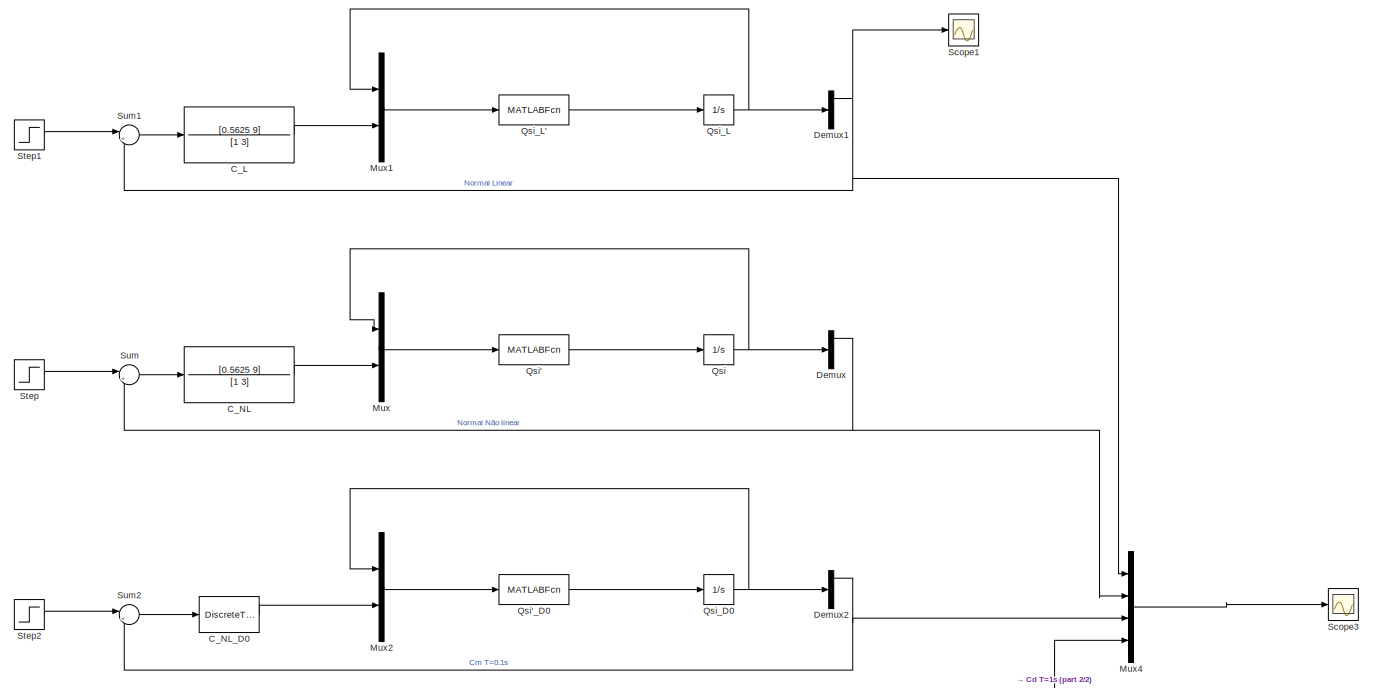
[diagram: root canvas - part 1/2, full width, top band]
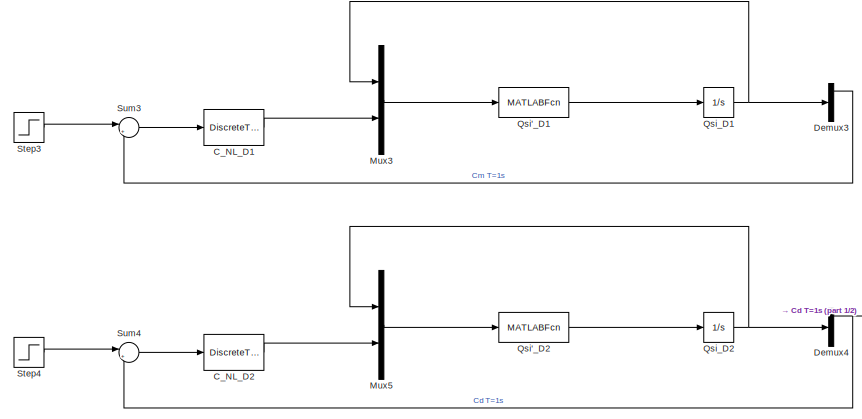
[diagram: root canvas - part 2/2, bottom left region]
MODEL slx_0befbc9e92ad
KIND model
CONFIG AbsTol = auto
CONFIG EnableMultiTasking = off
CONFIG FixedStep = auto
CONFIG MaxStep = auto
CONFIG MinStep = auto
CONFIG RelTol = 1e-3
CONFIG SampleTimeConstraint = Unconstrained
CONFIG SolverName = VariableStepAuto
CONFIG StartTime = 0.0
CONFIG StopTime = 10.0
BLOCK [TransferFcn] C_L
  Denominator = [1 3]
  Numerator = [0.5625 9]
BLOCK [TransferFcn] C_NL
  Denominator = [1 3]
  Numerator = [0.5625 9]
BLOCK [DiscreteTransferFcn] C_NL_D0
  Denominator = DCM0
  InputPortMap = u0
  Numerator = NCM0
  Ports = [1, 1]
  SampleTime = 0.1
BLOCK [DiscreteTransferFcn] C_NL_D1
  Denominator = DCM1
  InputPortMap = u0
  Numerator = NCM1
  Ports = [1, 1]
  SampleTime = 1
BLOCK [DiscreteTransferFcn] C_NL_D2
  Denominator = DCD
  InputPortMap = u0
  Numerator = NCD
  Ports = [1, 1]
  SampleTime = 1
BLOCK [Demux] Demux
  Ports = [1, 4]
BLOCK [Demux] Demux1
  Ports = [1, 4]
BLOCK [Demux] Demux2
  Ports = [1, 4]
BLOCK [Demux] Demux3
  Ports = [1, 4]
BLOCK [Demux] Demux4
  Ports = [1, 4]
BLOCK [Mux] Mux
  DisplayOption = bar
  Inputs = 2
  Ports = [2, 1]
BLOCK [Mux] Mux1
  DisplayOption = bar
  Inputs = 2
  Ports = [2, 1]
BLOCK [Mux] Mux2
  DisplayOption = bar
  Inputs = 2
  Ports = [2, 1]
BLOCK [Mux] Mux3
  DisplayOption = bar
  Inputs = 2
  Ports = [2, 1]
BLOCK [Mux] Mux4
  DisplayOption = bar
  Ports = [4, 1]
BLOCK [Mux] Mux5
  DisplayOption = bar
  Inputs = 2
  Ports = [2, 1]
BLOCK [Integrator] Qsi
  Ports = [1, 1]
BLOCK [MATLABFcn] Qsi'
  MATLABFcn = planta_funcao
  OutputDimensions = 4
  Ports = [1, 1]
BLOCK [MATLABFcn] Qsi'_D0
  MATLABFcn = planta_funcao
  OutputDimensions = 4
  Ports = [1, 1]
BLOCK [MATLABFcn] Qsi'_D1
  MATLABFcn = planta_funcao
  OutputDimensions = 4
  Ports = [1, 1]
BLOCK [MATLABFcn] Qsi'_D2
  MATLABFcn = planta_funcao
  OutputDimensions = 4
  Ports = [1, 1]
BLOCK [Integrator] Qsi_D0
  Ports = [1, 1]
BLOCK [Integrator] Qsi_D1
  Ports = [1, 1]
BLOCK [Integrator] Qsi_D2
  Ports = [1, 1]
BLOCK [Integrator] Qsi_L
  Ports = [1, 1]
BLOCK [MATLABFcn] Qsi_L'
  MATLABFcn = planta_funcao_linear
  OutputDimensions = 4
  Ports = [1, 1]
BLOCK [Scope] Scope1
  Floating = off
  NumInputPorts = 1
  Ports = [1]
  ScopeSpecificationString = Simulink.scopes.TimeScopeBlockCfg('CurrentConfiguration', extmgr.ConfigurationSet(extmgr.Configuration('Core','General UI',true),extmgr.Configuration('Core','Source UI',true),extmgr.Configuration('Sources','WiredSimulink',true,'DataLoggingVariableName','ScopeData1'),extmgr.Configuration('Visuals','Time Domain',true,'SerializedDisplays',{struct('MinYLimReal','-1.25065','MaxYLimReal','11.25587','YLa...<+1399ch>
BLOCK [Scope] Scope3
  Floating = off
  NumInputPorts = 1
  Ports = [1]
  ScopeSpecificationString = Simulink.scopes.TimeScopeBlockCfg('CurrentConfiguration', extmgr.ConfigurationSet(extmgr.Configuration('Core','General UI',true),extmgr.Configuration('Core','Source UI',true),extmgr.Configuration('Sources','WiredSimulink',true,'DataLoggingVariableName','ScopeData2'),extmgr.Configuration('Visuals','Time Domain',true,'SerializedDisplays',{struct('MinYLimReal','-0.05055','MaxYLimReal','10.50501','YLa...<+1958ch>
BLOCK [Step] Step
  After = 10
  SampleTime = 0
  Time = 0
BLOCK [Step] Step1
  After = 10
  SampleTime = 0
  Time = 0
BLOCK [Step] Step2
  After = 10
  SampleTime = 0
  Time = 0
BLOCK [Step] Step3
  After = 10
  SampleTime = 0
  Time = 0
BLOCK [Step] Step4
  After = 10
  SampleTime = 0
  Time = 0
BLOCK [Sum] Sum
  Inputs = |+-
  Ports = [2, 1]
BLOCK [Sum] Sum1
  Inputs = |+-
  Ports = [2, 1]
BLOCK [Sum] Sum2
  Inputs = |+-
  Ports = [2, 1]
BLOCK [Sum] Sum3
  Inputs = |+-
  Ports = [2, 1]
BLOCK [Sum] Sum4
  Inputs = |+-
  Ports = [2, 1]
LINE C_L:1 -> Mux1:2
LINE C_NL:1 -> Mux:2
LINE C_NL_D0:1 -> Mux2:2
LINE C_NL_D1:1 -> Mux3:2
LINE C_NL_D2:1 -> Mux5:2
NET Demux1:1 -> Mux4:1, Scope1:1, Sum1:2
NET Demux2:1 -> Mux4:3, Sum2:2
LINE Demux3:1 -> Sum3:2
NET Demux4:1 -> Mux4:4, Sum4:2
NET Demux:1 -> Mux4:2, Sum:2
LINE Mux1:1 -> Qsi_L':1
LINE Mux2:1 -> Qsi'_D0:1
LINE Mux3:1 -> Qsi'_D1:1
LINE Mux4:1 -> Scope3:1
LINE Mux5:1 -> Qsi'_D2:1
LINE Mux:1 -> Qsi':1
LINE Qsi':1 -> Qsi:1
LINE Qsi'_D0:1 -> Qsi_D0:1
LINE Qsi'_D1:1 -> Qsi_D1:1
LINE Qsi'_D2:1 -> Qsi_D2:1
NET Qsi:1 -> Demux:1, Mux:1
NET Qsi_D0:1 -> Demux2:1, Mux2:1
NET Qsi_D1:1 -> Demux3:1, Mux3:1
NET Qsi_D2:1 -> Demux4:1, Mux5:1
LINE Qsi_L':1 -> Qsi_L:1
NET Qsi_L:1 -> Demux1:1, Mux1:1
LINE Step1:1 -> Sum1:1
LINE Step2:1 -> Sum2:1
LINE Step3:1 -> Sum3:1
LINE Step4:1 -> Sum4:1
LINE Step:1 -> Sum:1
LINE Sum1:1 -> C_L:1
LINE Sum2:1 -> C_NL_D0:1
LINE Sum3:1 -> C_NL_D1:1
LINE Sum4:1 -> C_NL_D2:1
LINE Sum:1 -> C_NL:1
note: NET lines group one-source signal fan-out (src -> all destinations, sorted); 1:1 wires keep LINE
